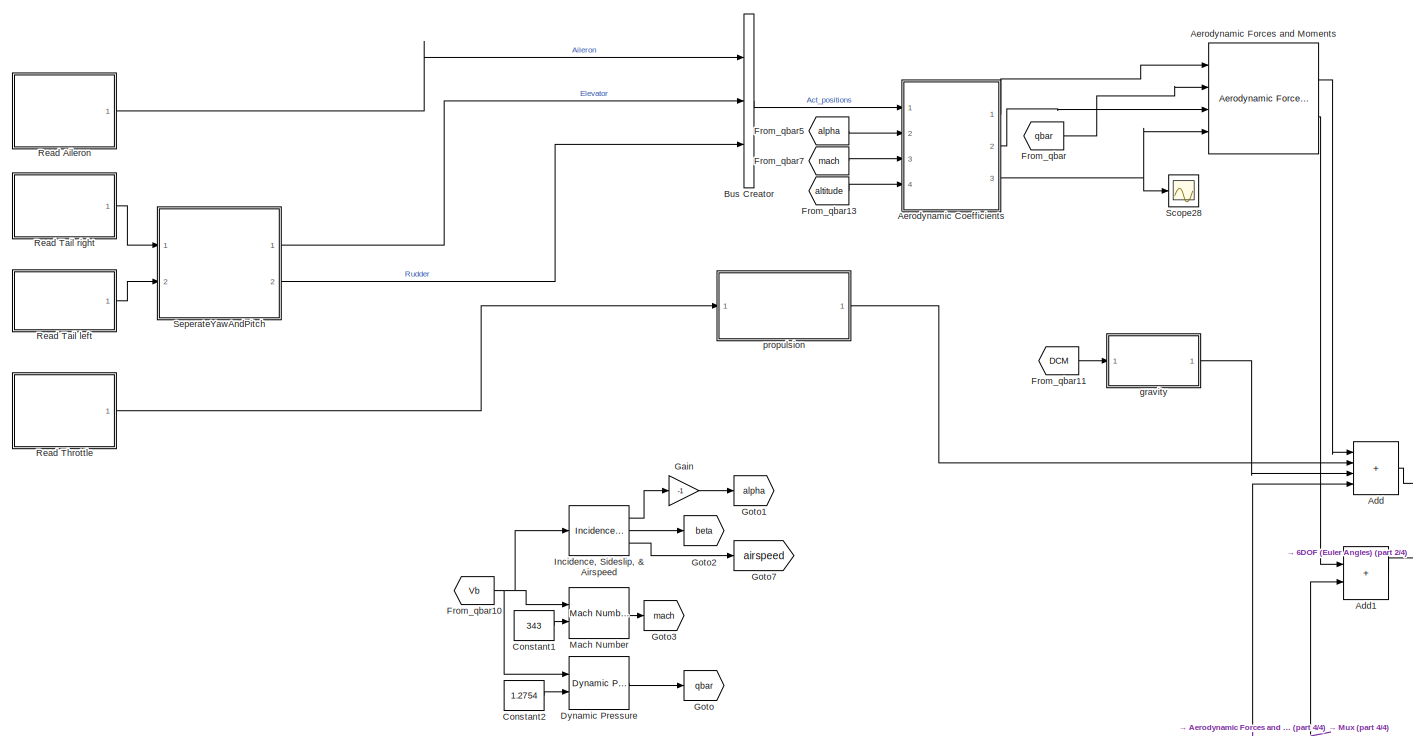
[diagram: root canvas - part 1/4, top left region]
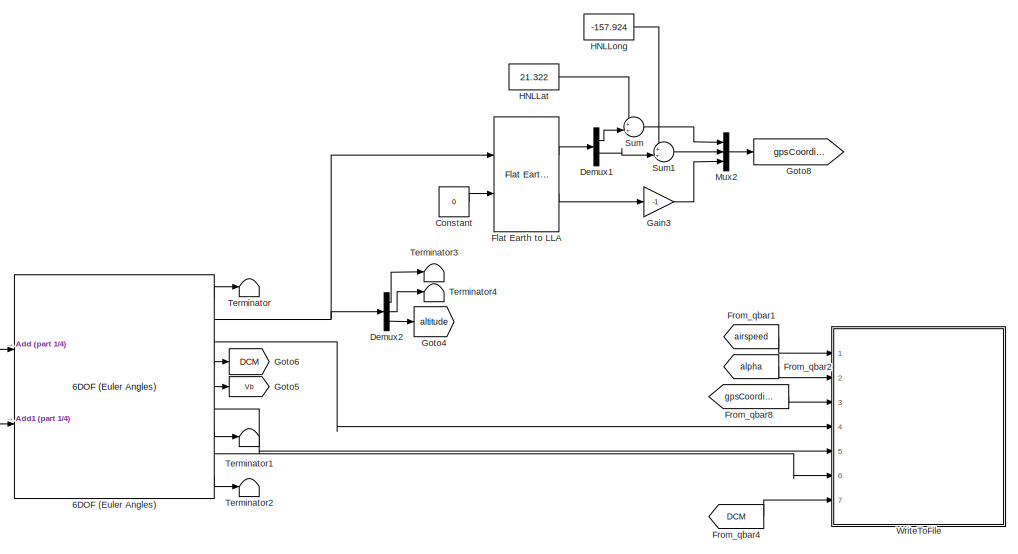
[diagram: root canvas - part 2/4, top right region]
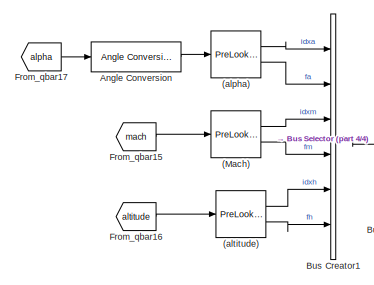
[diagram: root canvas - part 3/4, middle left region]
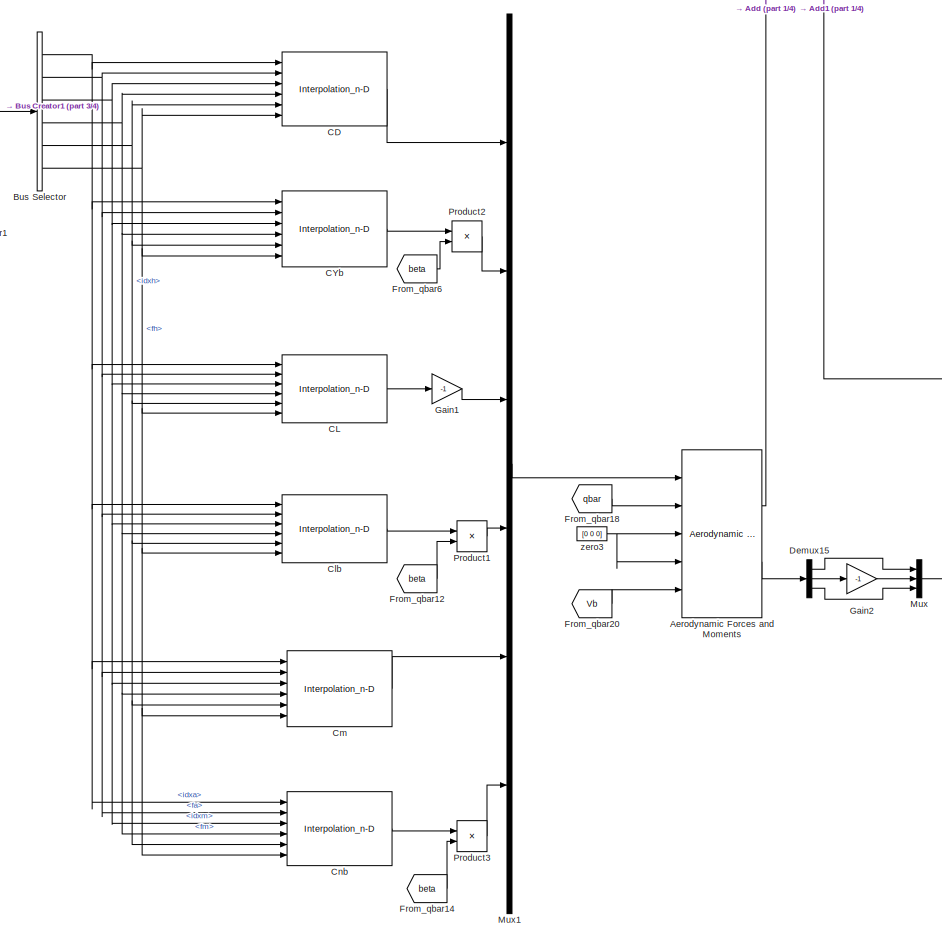
[diagram: root canvas - part 4/4, bottom center region]
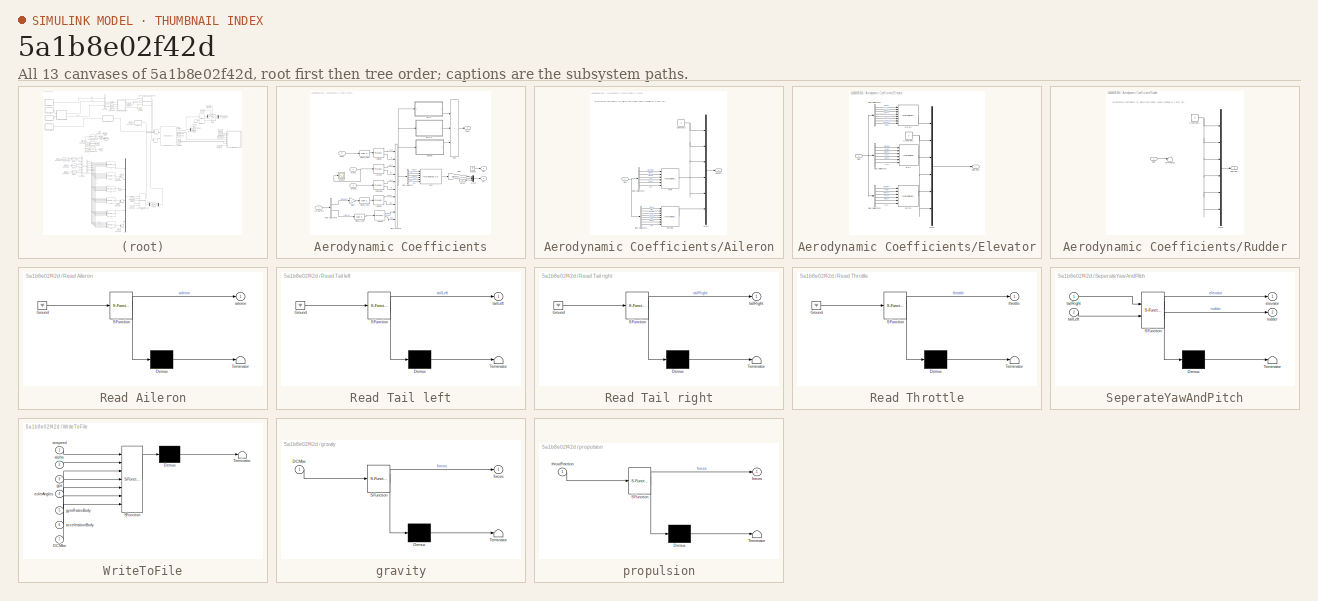
[diagram: thumbnail index - all 13 canvases of the model, root first then tree order]
MODEL slx_5a1b8e02f42d
KIND model
CONFIG AbsTol = auto
CONFIG EnableMultiTasking = off
CONFIG FixedStep = 0.02
CONFIG MaxStep = auto
CONFIG MinStep = auto
CONFIG RelTol = 1e-3
CONFIG SampleTimeConstraint = Unconstrained
CONFIG Solver = FixedStepAuto
CONFIG SolverName = FixedStepAuto
CONFIG StartTime = 0.0
CONFIG StopTime = 10.0
BLOCK [PreLookup] (Mach)
  BeginIndexSearchUsingPreviousIndexResult = on
  BreakpointsData = aero{1}.mach
  DiagnosticForOutOfRangeInput = Warning
  ExtrapMethod = Linear
  FractionDataTypeStr = double
  IndexDataTypeStr = int32
  InputPortMap = u0
  Ports = [1, 2]
BLOCK [PreLookup] (alpha)
  BeginIndexSearchUsingPreviousIndexResult = on
  BreakpointsData = aero{1}.alpha
  DiagnosticForOutOfRangeInput = Warning
  ExtrapMethod = Linear
  FractionDataTypeStr = double
  IndexDataTypeStr = int32
  InputPortMap = u0
  Ports = [1, 2]
BLOCK [PreLookup] (altitude)
  BeginIndexSearchUsingPreviousIndexResult = on
  BreakpointsData = aero{1}.alt
  DiagnosticForOutOfRangeInput = Warning
  ExtrapMethod = Linear
  FractionDataTypeStr = double
  IndexDataTypeStr = int32
  InputPortMap = u0
  Ports = [1, 2]
BLOCK [Reference] 6DOF (Euler Angles)  REF=shared6dof/6DOF (Euler Angles)
  Ports = [2, 9]
  SourceBlock = shared6dof/6DOF (Euler Angles)
  SourceProductBaseCode = AE,PW,MT,VE,VP
  SourceType = 6DOF EoM (Body Axis)
BLOCK [Sum] Add
  IconShape = rectangular
  Inputs = ++++
  Ports = [4, 1]
BLOCK [Sum] Add1
  IconShape = rectangular
  Ports = [2, 1]
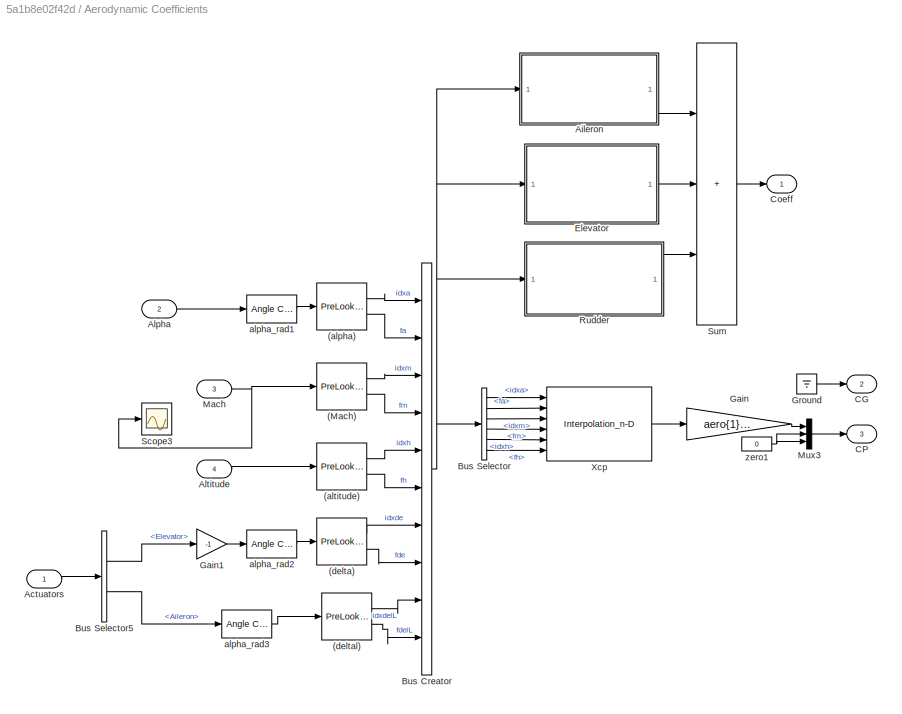
BLOCK [SubSystem] Aerodynamic Coefficients
  NameLocation = top
  Ports = [4, 3]
  RequestExecContextInheritance = off
BLOCK [PreLookup] Aerodynamic Coefficients/(Mach)
  BeginIndexSearchUsingPreviousIndexResult = on
  BreakpointsData = aero{1}.mach
  ExtrapMethod = Linear
  FractionDataTypeStr = double
  IndexDataTypeStr = int32
  InputPortMap = u0
  Ports = [1, 2]
BLOCK [PreLookup] Aerodynamic Coefficients/(alpha)
  BeginIndexSearchUsingPreviousIndexResult = on
  BreakpointsData = aero{1}.alpha
  ExtrapMethod = Linear
  FractionDataTypeStr = double
  IndexDataTypeStr = int32
  InputPortMap = u0
  Ports = [1, 2]
BLOCK [PreLookup] Aerodynamic Coefficients/(altitude)
  BeginIndexSearchUsingPreviousIndexResult = on
  BreakpointsData = aero{1}.alt
  ExtrapMethod = Linear
  FractionDataTypeStr = double
  IndexDataTypeStr = int32
  InputPortMap = u0
  Ports = [1, 2]
BLOCK [PreLookup] Aerodynamic Coefficients/(delta)
  BeginIndexSearchUsingPreviousIndexResult = on
  BreakpointsData = aero{1}.delta
  ExtrapMethod = Linear
  FractionDataTypeStr = double
  IndexDataTypeStr = int32
  InputPortMap = u0
  Ports = [1, 2]
BLOCK [PreLookup] Aerodynamic Coefficients/(deltal)
  BeginIndexSearchUsingPreviousIndexResult = on
  BreakpointsData = aero{2}.deltal
  ExtrapMethod = Linear
  FractionDataTypeStr = double
  IndexDataTypeStr = int32
  InputPortMap = u0
  Ports = [1, 2]
BLOCK [Inport] Aerodynamic Coefficients/Actuators
BLOCK [SubSystem] Aerodynamic Coefficients/Aileron
  Ports = [1, 1]
  RequestExecContextInheritance = off
BLOCK [Inport] Aerodynamic Coefficients/Aileron/Bus
BLOCK [BusSelector] Aerodynamic Coefficients/Aileron/Bus Selector2
  OutputSignals = idxa,fa,idxdelL,fdelL,idxm,fm,idxh,fh
  Ports = [1, 8]
BLOCK [BusSelector] Aerodynamic Coefficients/Aileron/Bus Selector3
  OutputSignals = idxdelL,fdelL,idxm,fm,idxh,fh
  Ports = [1, 6]
BLOCK [Interpolation_n-D] Aerodynamic Coefficients/Aileron/CmYaw 
  InputPortMap = u0,u1,u2,u3,u4,u5,u6,u7
  NumberOfTableDimensions = 4
  Ports = [8, 1]
  RemoveProtectionIndex = on
  Table = aero{2}.cn_asy
BLOCK [Constant] Aerodynamic Coefficients/Aileron/Constant1
  Value = 0
BLOCK [Mux] Aerodynamic Coefficients/Aileron/Mux1
  Inputs = 6
  Ports = [6, 1]
BLOCK [Interpolation_n-D] Aerodynamic Coefficients/Aileron/clroll
  InputPortMap = u0,u1,u2,u3,u4,u5
  NumberOfTableDimensions = 3
  Ports = [6, 1]
  RemoveProtectionIndex = on
  Table = permute(aero{2}.clroll,[1  2  3])
BLOCK [Outport] Aerodynamic Coefficients/Aileron/delCoeff
  VectorParamsAs1DForOutWhenUnconnected = off
BLOCK [Inport] Aerodynamic Coefficients/Alpha
  Port = 2
BLOCK [Inport] Aerodynamic Coefficients/Altitude
  Port = 4
BLOCK [BusCreator] Aerodynamic Coefficients/Bus Creator
  DisplayOption = bar
  InheritFromInputs = on
  Inputs = idxa,fa,idxm,fm,idxh,fh,idxde,fde,idxdelL,fdelL
  Ports = [10, 1]
BLOCK [BusSelector] Aerodynamic Coefficients/Bus Selector
  OutputSignals = idxa,fa,idxm,fm,idxh,fh
  Ports = [1, 6]
BLOCK [BusSelector] Aerodynamic Coefficients/Bus Selector5
  OutputSignals = Elevator,Aileron
  Ports = [1, 2]
BLOCK [Outport] Aerodynamic Coefficients/CG
  InitialOutput = 0
  Port = 2
  PortDimensions = 3
  VectorParamsAs1DForOutWhenUnconnected = off
BLOCK [Outport] Aerodynamic Coefficients/CP
  InitialOutput = 0
  Port = 3
  PortDimensions = 3
  VectorParamsAs1DForOutWhenUnconnected = off
BLOCK [Outport] Aerodynamic Coefficients/Coeff
  InitialOutput = 0
  VectorParamsAs1DForOutWhenUnconnected = off
BLOCK [SubSystem] Aerodynamic Coefficients/Elevator
  Ports = [1, 1]
  RequestExecContextInheritance = off
BLOCK [Inport] Aerodynamic Coefficients/Elevator/Bus
  NameLocation = top
BLOCK [BusSelector] Aerodynamic Coefficients/Elevator/Bus Selector2
  OutputSignals = idxa,fa,idxm,fm,idxh,fh,idxde,fde
  Ports = [1, 8]
BLOCK [BusSelector] Aerodynamic Coefficients/Elevator/Bus Selector3
  OutputSignals = idxde,fde,idxm,fm,idxh,fh
  Ports = [1, 6]
BLOCK [BusSelector] Aerodynamic Coefficients/Elevator/Bus Selector5
  OutputSignals = idxde,fde,idxm,fm,idxh,fh
  Ports = [1, 6]
BLOCK [Constant] Aerodynamic Coefficients/Elevator/Constant1
  Value = 0
BLOCK [Interpolation_n-D] Aerodynamic Coefficients/Elevator/DCDI
  InputPortMap = u0,u1,u2,u3,u4,u5,u6,u7
  NumberOfTableDimensions = 4
  Ports = [8, 1]
  RemoveProtectionIndex = on
  Table = permute(aero{1}.dcdi_sym,[1 3 4 2 ])
BLOCK [Interpolation_n-D] Aerodynamic Coefficients/Elevator/DCL
  InputPortMap = u0,u1,u2,u3,u4,u5
  NumberOfTableDimensions = 3
  Ports = [6, 1]
  RemoveProtectionIndex = on
  Table = permute(aero{1}.dcl_sym,[1  2  3])
BLOCK [Interpolation_n-D] Aerodynamic Coefficients/Elevator/DCm
  InputPortMap = u0,u1,u2,u3,u4,u5
  NumberOfTableDimensions = 3
  Ports = [6, 1]
  RemoveProtectionIndex = on
  Table = permute(aero{1}.dcm_sym,[1  2  3])
BLOCK [Mux] Aerodynamic Coefficients/Elevator/Mux1
  Inputs = 6
  Ports = [6, 1]
BLOCK [Outport] Aerodynamic Coefficients/Elevator/delCoeff
  VectorParamsAs1DForOutWhenUnconnected = off
BLOCK [Gain] Aerodynamic Coefficients/Gain
  Gain = aero{1}.cbar
BLOCK [Gain] Aerodynamic Coefficients/Gain1
  Gain = -1
BLOCK [Ground] Aerodynamic Coefficients/Ground
BLOCK [Inport] Aerodynamic Coefficients/Mach
  Port = 3
BLOCK [Mux] Aerodynamic Coefficients/Mux3
  DisplayOption = bar
  Inputs = 3
  Ports = [3, 1]
BLOCK [SubSystem] Aerodynamic Coefficients/Rudder
  Ports = [1, 1]
  RequestExecContextInheritance = off
BLOCK [Inport] Aerodynamic Coefficients/Rudder/Bus
BLOCK [Constant] Aerodynamic Coefficients/Rudder/Constant1
  Value = 0
BLOCK [Mux] Aerodynamic Coefficients/Rudder/Mux1
  Inputs = 6
  Ports = [6, 1]
BLOCK [Terminator] Aerodynamic Coefficients/Rudder/Terminator
BLOCK [Outport] Aerodynamic Coefficients/Rudder/delCoeff
  VectorParamsAs1DForOutWhenUnconnected = off
BLOCK [Scope] Aerodynamic Coefficients/Scope3
  Floating = off
  NumInputPorts = 1
  Ports = [1]
  ScopeSpecificationString = Simulink.scopes.TimeScopeBlockCfg('CurrentConfiguration', extmgr.ConfigurationSet(extmgr.Configuration('Core','General UI',true),extmgr.Configuration('Core','Source UI',true),extmgr.Configuration('Sources','WiredSimulink',true,'DataLoggingVariableName','ScopeData8'),extmgr.Configuration('Visuals','Time Domain',true,'SerializedDisplays',{struct('MinYLimReal','0.03517','MaxYLimReal','0.26657','YLabe...<+1396ch>
BLOCK [Sum] Aerodynamic Coefficients/Sum
  IconShape = rectangular
  InputSameDT = on
  Inputs = 3
  OutDataTypeStr = Inherit: Same as first input
  Ports = [3, 1]
  SaturateOnIntegerOverflow = on
BLOCK [Interpolation_n-D] Aerodynamic Coefficients/Xcp
  InputPortMap = u0,u1,u2,u3,u4,u5
  NumberOfTableDimensions = 3
  OutDataTypeStr = double
  Ports = [6, 1]
  Table = permute(aero{1}.xcp,[1  2  3])
BLOCK [Reference] Aerodynamic Coefficients/alpha_rad1  REF=aerolibconvert2/Angle Conversion
  NameLocation = top
  Ports = [1, 1]
  SourceBlock = aerolibconvert2/Angle Conversion
  SourceProductBaseCode = AE
  SourceType = Angle Conversion
BLOCK [Reference] Aerodynamic Coefficients/alpha_rad2  REF=aerolibconvert2/Angle Conversion
  NameLocation = top
  Ports = [1, 1]
  SourceBlock = aerolibconvert2/Angle Conversion
  SourceProductBaseCode = AE
  SourceType = Angle Conversion
BLOCK [Reference] Aerodynamic Coefficients/alpha_rad3  REF=aerolibconvert2/Angle Conversion
  NameLocation = top
  Ports = [1, 1]
  SourceBlock = aerolibconvert2/Angle Conversion
  SourceProductBaseCode = AE
  SourceType = Angle Conversion
BLOCK [Constant] Aerodynamic Coefficients/zero1
  Value = 0
BLOCK [Reference] Aerodynamic Forces and Moments  REF=aerolibadyn/Aerodynamic
Forces and Moments 
  Ports = [5, 2]
  SourceBlock = aerolibadyn/Aerodynamic\nForces and Moments
  SourceProductBaseCode = AE
  SourceType = Aerodynamic Forces and Moments
BLOCK [Reference] Aerodynamic Forces and Moments   REF=aerolibadyn/Aerodynamic
Forces and Moments 
  Ports = [4, 2]
  SourceBlock = aerolibadyn/Aerodynamic\nForces and Moments
  SourceProductBaseCode = AE
  SourceType = Aerodynamic Forces and Moments
BLOCK [Reference] Angle Conversion  REF=aerolibconvert2/Angle Conversion
  Ports = [1, 1]
  SourceBlock = aerolibconvert2/Angle Conversion
  SourceProductBaseCode = AE
  SourceType = Angle Conversion
BLOCK [BusCreator] Bus Creator
  DisplayOption = bar
  InheritFromInputs = on
  Inputs = 3
  Ports = [3, 1]
BLOCK [BusCreator] Bus Creator1
  DisplayOption = bar
  InheritFromInputs = on
  Inputs = 6
  Ports = [6, 1]
BLOCK [BusSelector] Bus Selector
  OutputSignals = idxa,fa,idxm,fm,idxh,fh
  Ports = [1, 6]
BLOCK [Interpolation_n-D] CD
  DiagnosticForOutOfRangeInput = Warning
  InputPortMap = u0,u1,u2,u3,u4,u5
  NumberOfTableDimensions = 3
  OutDataTypeStr = double
  Ports = [6, 1]
  Table = permute(aero{1}.cd,[1  2  3])
BLOCK [Interpolation_n-D] CL
  DiagnosticForOutOfRangeInput = Warning
  InputPortMap = u0,u1,u2,u3,u4,u5
  NumberOfTableDimensions = 3
  OutDataTypeStr = double
  Ports = [6, 1]
  Table = permute(aero{1}.cl,[1  2  3])
BLOCK [Interpolation_n-D] CYb
  DiagnosticForOutOfRangeInput = Warning
  InputPortMap = u0,u1,u2,u3,u4,u5
  NumberOfTableDimensions = 3
  OutDataTypeStr = double
  Ports = [6, 1]
  Table = permute(aero{1}.cyb,[1  2  3])
BLOCK [Interpolation_n-D] Clb
  DiagnosticForOutOfRangeInput = Warning
  InputPortMap = u0,u1,u2,u3,u4,u5
  NumberOfTableDimensions = 3
  OutDataTypeStr = double
  Ports = [6, 1]
  Table = permute(aero{1}.clb,[1  2  3])
BLOCK [Interpolation_n-D] Cm
  DiagnosticForOutOfRangeInput = Warning
  InputPortMap = u0,u1,u2,u3,u4,u5
  NumberOfTableDimensions = 3
  OutDataTypeStr = double
  Ports = [6, 1]
  Table = permute(aero{1}.cm,[1  2  3])
BLOCK [Interpolation_n-D] Cnb
  DiagnosticForOutOfRangeInput = Warning
  InputPortMap = u0,u1,u2,u3,u4,u5
  NumberOfTableDimensions = 3
  OutDataTypeStr = double
  Ports = [6, 1]
  Table = permute(aero{1}.cnb,[1  2  3])
BLOCK [Constant] Constant
  Value = 0
BLOCK [Constant] Constant1
  Value = 343
BLOCK [Constant] Constant2
  Value = 1.2754
BLOCK [Demux] Demux1
  Outputs = 2
  Ports = [1, 2]
BLOCK [Demux] Demux15
  Outputs = 3
  Ports = [1, 3]
BLOCK [Demux] Demux2
  Outputs = 3
  Ports = [1, 3]
BLOCK [Reference] Dynamic Pressure  REF=aerolibasang/Dynamic Pressure
  Ports = [2, 1]
  SourceBlock = aerolibasang/Dynamic Pressure
  SourceProductBaseCode = AE
  SourceType = Dynamic Pressure
BLOCK [Reference] Flat Earth to LLA  REF=aerolibtransform2/Flat Earth to LLA
  Ports = [2, 2]
  SourceBlock = aerolibtransform2/Flat Earth to LLA
  SourceProductBaseCode = AE
  SourceType = Flat Earth to LLA
BLOCK [From] From_qbar
  GotoTag = qbar
BLOCK [From] From_qbar1
  GotoTag = airspeed
BLOCK [From] From_qbar10
  GotoTag = Vb
BLOCK [From] From_qbar11
  GotoTag = DCM
BLOCK [From] From_qbar12
  GotoTag = beta
BLOCK [From] From_qbar13
  GotoTag = altitude
BLOCK [From] From_qbar14
  GotoTag = beta
BLOCK [From] From_qbar15
  GotoTag = mach
BLOCK [From] From_qbar16
  GotoTag = altitude
BLOCK [From] From_qbar17
  GotoTag = alpha
BLOCK [From] From_qbar18
  GotoTag = qbar
BLOCK [From] From_qbar2
  GotoTag = alpha
BLOCK [From] From_qbar20
  GotoTag = Vb
BLOCK [From] From_qbar4
  GotoTag = DCM
BLOCK [From] From_qbar5
  GotoTag = alpha
BLOCK [From] From_qbar6
  GotoTag = beta
BLOCK [From] From_qbar7
  GotoTag = mach
BLOCK [From] From_qbar8
  GotoTag = gpsCoordinates
BLOCK [Gain] Gain
  Gain = -1
BLOCK [Gain] Gain1
  Gain = -1
BLOCK [Gain] Gain2
  Gain = -1
BLOCK [Gain] Gain3
  Gain = -1
BLOCK [Goto] Goto
  GotoTag = qbar
BLOCK [Goto] Goto1
  GotoTag = alpha
BLOCK [Goto] Goto2
  GotoTag = beta
BLOCK [Goto] Goto3
  GotoTag = mach
BLOCK [Goto] Goto4
  GotoTag = altitude
BLOCK [Goto] Goto5
  GotoTag = Vb
BLOCK [Goto] Goto6
  GotoTag = DCM
BLOCK [Goto] Goto7
  GotoTag = airspeed
BLOCK [Goto] Goto8
  GotoTag = gpsCoordinates
BLOCK [Constant] HNLLat
  Value = 21.322
BLOCK [Constant] HNLLong
  Value = -157.924
BLOCK [Reference] Incidence, Sideslip, & Airspeed  REF=aerolibasang/Incidence, Sideslip,
& Airspeed
  Ports = [1, 3]
  SourceBlock = aerolibasang/Incidence, Sideslip,\n& Airspeed
  SourceProductBaseCode = AE
  SourceType = Incidence,Sideslip,&Airspeed
BLOCK [Reference] Mach Number  REF=aerolibasang/Mach Number
  Ports = [2, 1]
  SourceBlock = aerolibasang/Mach Number
  SourceProductBaseCode = AE
  SourceType = Mach Number
BLOCK [Mux] Mux
  DisplayOption = bar
  Inputs = 3
  Ports = [3, 1]
BLOCK [Mux] Mux1
  DisplayOption = bar
  Inputs = 6
  Ports = [6, 1]
BLOCK [Mux] Mux2
  DisplayOption = bar
  Inputs = 3
  Ports = [3, 1]
BLOCK [Product] Product1
  Ports = [2, 1]
  RndMeth = Zero
BLOCK [Product] Product2
  Ports = [2, 1]
  RndMeth = Zero
BLOCK [Product] Product3
  Ports = [2, 1]
  RndMeth = Zero
BLOCK [SubSystem] Read Aileron
  ErrorFcn = Stateflow.Translate.translate
  PermitHierarchicalResolution = ExplicitOnly
  Ports = [0, 1]
  RequestExecContextInheritance = off
  SFBlockType = MATLAB Function
  TreatAsAtomicUnit = on
BLOCK [Demux] Read Aileron/ Demux 
  Outputs = 1
  Ports = [1, 1]
BLOCK [Ground] Read Aileron/ Ground 
BLOCK [S-Function] Read Aileron/ SFunction 
  EnableBusSupport = on
  FunctionName = sf_sfun
  PortCounts = [1 2]
  Ports = [1, 2]
  SFcnIsStateOwnerBlock = off
  SFunctionDeploymentMode = off
  Tag = Stateflow S-Function 2
BLOCK [Terminator] Read Aileron/ Terminator 
BLOCK [Outport] Read Aileron/aileron
  VectorParamsAs1DForOutWhenUnconnected = off
BLOCK [SubSystem] Read Tail left
  ErrorFcn = Stateflow.Translate.translate
  PermitHierarchicalResolution = ExplicitOnly
  Ports = [0, 1]
  RequestExecContextInheritance = off
  SFBlockType = MATLAB Function
  TreatAsAtomicUnit = on
BLOCK [Demux] Read Tail left/ Demux 
  Outputs = 1
  Ports = [1, 1]
BLOCK [Ground] Read Tail left/ Ground 
BLOCK [S-Function] Read Tail left/ SFunction 
  EnableBusSupport = on
  FunctionName = sf_sfun
  PortCounts = [1 2]
  Ports = [1, 2]
  SFcnIsStateOwnerBlock = off
  SFunctionDeploymentMode = off
  Tag = Stateflow S-Function 4
BLOCK [Terminator] Read Tail left/ Terminator 
BLOCK [Outport] Read Tail left/tailLeft
  VectorParamsAs1DForOutWhenUnconnected = off
BLOCK [SubSystem] Read Tail right
  ErrorFcn = Stateflow.Translate.translate
  PermitHierarchicalResolution = ExplicitOnly
  Ports = [0, 1]
  RequestExecContextInheritance = off
  SFBlockType = MATLAB Function
  TreatAsAtomicUnit = on
BLOCK [Demux] Read Tail right/ Demux 
  Outputs = 1
  Ports = [1, 1]
BLOCK [Ground] Read Tail right/ Ground 
BLOCK [S-Function] Read Tail right/ SFunction 
  EnableBusSupport = on
  FunctionName = sf_sfun
  PortCounts = [1 2]
  Ports = [1, 2]
  SFcnIsStateOwnerBlock = off
  SFunctionDeploymentMode = off
  Tag = Stateflow S-Function 5
BLOCK [Terminator] Read Tail right/ Terminator 
BLOCK [Outport] Read Tail right/tailRight
  VectorParamsAs1DForOutWhenUnconnected = off
BLOCK [SubSystem] Read Throttle
  ErrorFcn = Stateflow.Translate.translate
  PermitHierarchicalResolution = ExplicitOnly
  Ports = [0, 1]
  RequestExecContextInheritance = off
  SFBlockType = MATLAB Function
  TreatAsAtomicUnit = on
BLOCK [Demux] Read Throttle/ Demux 
  Outputs = 1
  Ports = [1, 1]
BLOCK [Ground] Read Throttle/ Ground 
BLOCK [S-Function] Read Throttle/ SFunction 
  EnableBusSupport = on
  FunctionName = sf_sfun
  PortCounts = [1 2]
  Ports = [1, 2]
  SFcnIsStateOwnerBlock = off
  SFunctionDeploymentMode = off
  Tag = Stateflow S-Function 3
BLOCK [Terminator] Read Throttle/ Terminator 
BLOCK [Outport] Read Throttle/throttle
  VectorParamsAs1DForOutWhenUnconnected = off
BLOCK [Scope] Scope28
  Floating = off
  NumInputPorts = 1
  Ports = [1]
  ScopeSpecificationString = Simulink.scopes.TimeScopeBlockCfg('CurrentConfiguration', extmgr.ConfigurationSet(extmgr.Configuration('Core','General UI',true),extmgr.Configuration('Core','Source UI',true),extmgr.Configuration('Sources','WiredSimulink',true,'DataLoggingVariableName','ScopeData33'),extmgr.Configuration('Visuals','Time Domain',true,'SerializedDisplays',{struct('MinYLimReal','-2.39294','MaxYLimReal','0.80199','YLa...<+1597ch>
BLOCK [SubSystem] SeperateYawAndPitch
  ErrorFcn = Stateflow.Translate.translate
  PermitHierarchicalResolution = ExplicitOnly
  Ports = [2, 2]
  RequestExecContextInheritance = off
  SFBlockType = MATLAB Function
  TreatAsAtomicUnit = on
BLOCK [Demux] SeperateYawAndPitch/ Demux 
  Outputs = 1
  Ports = [1, 1]
BLOCK [S-Function] SeperateYawAndPitch/ SFunction 
  EnableBusSupport = on
  FunctionName = sf_sfun
  PortCounts = [2 3]
  Ports = [2, 3]
  SFcnIsStateOwnerBlock = off
  SFunctionDeploymentMode = off
  Tag = Stateflow S-Function 6
BLOCK [Terminator] SeperateYawAndPitch/ Terminator 
BLOCK [Outport] SeperateYawAndPitch/elevator
BLOCK [Outport] SeperateYawAndPitch/rudder
  Port = 2
BLOCK [Inport] SeperateYawAndPitch/tailLeft
  Port = 2
BLOCK [Inport] SeperateYawAndPitch/tailRight
BLOCK [Sum] Sum
  Inputs = ++|
  Ports = [2, 1]
BLOCK [Sum] Sum1
  Inputs = ++|
  Ports = [2, 1]
BLOCK [Terminator] Terminator
BLOCK [Terminator] Terminator1
BLOCK [Terminator] Terminator2
BLOCK [Terminator] Terminator3
BLOCK [Terminator] Terminator4
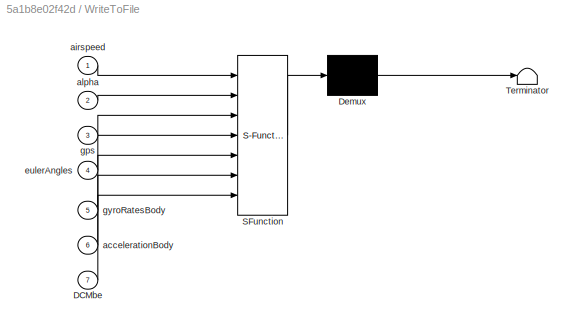
BLOCK [SubSystem] WriteToFile
  ErrorFcn = Stateflow.Translate.translate
  PermitHierarchicalResolution = ExplicitOnly
  Ports = [7]
  RequestExecContextInheritance = off
  SFBlockType = MATLAB Function
  TreatAsAtomicUnit = on
BLOCK [Demux] WriteToFile/ Demux 
  Outputs = 1
  Ports = [1, 1]
BLOCK [S-Function] WriteToFile/ SFunction 
  EnableBusSupport = on
  FunctionName = sf_sfun
  PortCounts = [7 1]
  Ports = [7, 1]
  SFcnIsStateOwnerBlock = off
  SFunctionDeploymentMode = off
  Tag = Stateflow S-Function 1
BLOCK [Terminator] WriteToFile/ Terminator 
BLOCK [Inport] WriteToFile/DCMbe
  Port = 7
BLOCK [Inport] WriteToFile/accelerationBody
  Port = 6
BLOCK [Inport] WriteToFile/airspeed
BLOCK [Inport] WriteToFile/alpha
  Port = 2
BLOCK [Inport] WriteToFile/eulerAngles
  Port = 4
BLOCK [Inport] WriteToFile/gps
  Port = 3
BLOCK [Inport] WriteToFile/gyroRatesBody
  Port = 5
BLOCK [SubSystem] gravity
  ErrorFcn = Stateflow.Translate.translate
  PermitHierarchicalResolution = ExplicitOnly
  Ports = [1, 1]
  RequestExecContextInheritance = off
  SFBlockType = MATLAB Function
  TreatAsAtomicUnit = on
BLOCK [Demux] gravity/ Demux 
  Outputs = 1
  Ports = [1, 1]
BLOCK [S-Function] gravity/ SFunction 
  EnableBusSupport = on
  FunctionName = sf_sfun
  PortCounts = [1 2]
  Ports = [1, 2]
  SFcnIsStateOwnerBlock = off
  SFunctionDeploymentMode = off
  Tag = Stateflow S-Function 7
BLOCK [Terminator] gravity/ Terminator 
BLOCK [Inport] gravity/DCMbe
BLOCK [Outport] gravity/forces
BLOCK [SubSystem] propulsion
  ErrorFcn = Stateflow.Translate.translate
  PermitHierarchicalResolution = ExplicitOnly
  Ports = [1, 1]
  RequestExecContextInheritance = off
  SFBlockType = MATLAB Function
  TreatAsAtomicUnit = on
BLOCK [Demux] propulsion/ Demux 
  Outputs = 1
  Ports = [1, 1]
BLOCK [S-Function] propulsion/ SFunction 
  EnableBusSupport = on
  FunctionName = sf_sfun
  PortCounts = [1 2]
  Ports = [1, 2]
  SFcnIsStateOwnerBlock = off
  SFunctionDeploymentMode = off
  Tag = Stateflow S-Function 8
BLOCK [Terminator] propulsion/ Terminator 
BLOCK [Outport] propulsion/forces
BLOCK [Inport] propulsion/thrustFraction
BLOCK [Constant] zero3
  Value = [0 0 0]
ANNOTATION Aerodynamic Coefficients/Aileron: Aerodynamics coefficients for aileron and rudder will be modeled at a later time when 6DOF model is developed.
ANNOTATION Aerodynamic Coefficients/Rudder: Aerodynamics coefficients for aileron and rudder will be modeled at a later time when 6DOF model is developed.
LINE (Mach):1 -> Bus Creator1:3
LINE (Mach):2 -> Bus Creator1:4
LINE (alpha):1 -> Bus Creator1:1
LINE (alpha):2 -> Bus Creator1:2
LINE (altitude):1 -> Bus Creator1:5
LINE (altitude):2 -> Bus Creator1:6
LINE 6DOF (Euler Angles):1 -> Terminator:1
NET 6DOF (Euler Angles):2 -> Demux2:1, Flat Earth to LLA:1
LINE 6DOF (Euler Angles):3 -> WriteToFile:4
LINE 6DOF (Euler Angles):4 -> Goto6:1
LINE 6DOF (Euler Angles):5 -> Goto5:1
LINE 6DOF (Euler Angles):6 -> WriteToFile:5
LINE 6DOF (Euler Angles):7 -> Terminator1:1
LINE 6DOF (Euler Angles):8 -> WriteToFile:6
LINE 6DOF (Euler Angles):9 -> Terminator2:1
LINE Add1:1 -> 6DOF (Euler Angles):2
LINE Add:1 -> 6DOF (Euler Angles):1
LINE Aerodynamic Coefficients/(Mach):1 -> Aerodynamic Coefficients/Bus Creator:3
LINE Aerodynamic Coefficients/(Mach):2 -> Aerodynamic Coefficients/Bus Creator:4
LINE Aerodynamic Coefficients/(alpha):1 -> Aerodynamic Coefficients/Bus Creator:1
LINE Aerodynamic Coefficients/(alpha):2 -> Aerodynamic Coefficients/Bus Creator:2
LINE Aerodynamic Coefficients/(altitude):1 -> Aerodynamic Coefficients/Bus Creator:5
LINE Aerodynamic Coefficients/(altitude):2 -> Aerodynamic Coefficients/Bus Creator:6
LINE Aerodynamic Coefficients/(delta):1 -> Aerodynamic Coefficients/Bus Creator:7
LINE Aerodynamic Coefficients/(delta):2 -> Aerodynamic Coefficients/Bus Creator:8
LINE Aerodynamic Coefficients/(deltal):1 -> Aerodynamic Coefficients/Bus Creator:9
LINE Aerodynamic Coefficients/(deltal):2 -> Aerodynamic Coefficients/Bus Creator:10
LINE Aerodynamic Coefficients/Actuators:1 -> Aerodynamic Coefficients/Bus Selector5:1
LINE Aerodynamic Coefficients/Aileron/Bus Selector2:1 -> Aerodynamic Coefficients/Aileron/CmYaw :1
LINE Aerodynamic Coefficients/Aileron/Bus Selector2:2 -> Aerodynamic Coefficients/Aileron/CmYaw :2
LINE Aerodynamic Coefficients/Aileron/Bus Selector2:3 -> Aerodynamic Coefficients/Aileron/CmYaw :3
LINE Aerodynamic Coefficients/Aileron/Bus Selector2:4 -> Aerodynamic Coefficients/Aileron/CmYaw :4
LINE Aerodynamic Coefficients/Aileron/Bus Selector2:5 -> Aerodynamic Coefficients/Aileron/CmYaw :5
LINE Aerodynamic Coefficients/Aileron/Bus Selector2:6 -> Aerodynamic Coefficients/Aileron/CmYaw :6
LINE Aerodynamic Coefficients/Aileron/Bus Selector2:7 -> Aerodynamic Coefficients/Aileron/CmYaw :7
LINE Aerodynamic Coefficients/Aileron/Bus Selector2:8 -> Aerodynamic Coefficients/Aileron/CmYaw :8
LINE Aerodynamic Coefficients/Aileron/Bus Selector3:1 -> Aerodynamic Coefficients/Aileron/clroll:1
LINE Aerodynamic Coefficients/Aileron/Bus Selector3:2 -> Aerodynamic Coefficients/Aileron/clroll:2
LINE Aerodynamic Coefficients/Aileron/Bus Selector3:3 -> Aerodynamic Coefficients/Aileron/clroll:3
LINE Aerodynamic Coefficients/Aileron/Bus Selector3:4 -> Aerodynamic Coefficients/Aileron/clroll:4
LINE Aerodynamic Coefficients/Aileron/Bus Selector3:5 -> Aerodynamic Coefficients/Aileron/clroll:5
LINE Aerodynamic Coefficients/Aileron/Bus Selector3:6 -> Aerodynamic Coefficients/Aileron/clroll:6
NET Aerodynamic Coefficients/Aileron/Bus:1 -> Aerodynamic Coefficients/Aileron/Bus Selector2:1, Aerodynamic Coefficients/Aileron/Bus Selector3:1
LINE Aerodynamic Coefficients/Aileron/CmYaw :1 -> Aerodynamic Coefficients/Aileron/Mux1:6
NET Aerodynamic Coefficients/Aileron/Constant1:1 -> Aerodynamic Coefficients/Aileron/Mux1:1, Aerodynamic Coefficients/Aileron/Mux1:2, Aerodynamic Coefficients/Aileron/Mux1:3, Aerodynamic Coefficients/Aileron/Mux1:5
LINE Aerodynamic Coefficients/Aileron/Mux1:1 -> Aerodynamic Coefficients/Aileron/delCoeff:1
LINE Aerodynamic Coefficients/Aileron/clroll:1 -> Aerodynamic Coefficients/Aileron/Mux1:4
LINE Aerodynamic Coefficients/Aileron:1 -> Aerodynamic Coefficients/Sum:1
LINE Aerodynamic Coefficients/Alpha:1 -> Aerodynamic Coefficients/alpha_rad1:1
LINE Aerodynamic Coefficients/Altitude:1 -> Aerodynamic Coefficients/(altitude):1
NET Aerodynamic Coefficients/Bus Creator:1 -> Aerodynamic Coefficients/Aileron:1, Aerodynamic Coefficients/Bus Selector:1, Aerodynamic Coefficients/Elevator:1, Aerodynamic Coefficients/Rudder:1
LINE Aerodynamic Coefficients/Bus Selector5:1 -> Aerodynamic Coefficients/Gain1:1
LINE Aerodynamic Coefficients/Bus Selector5:2 -> Aerodynamic Coefficients/alpha_rad3:1
LINE Aerodynamic Coefficients/Bus Selector:1 -> Aerodynamic Coefficients/Xcp:1
LINE Aerodynamic Coefficients/Bus Selector:2 -> Aerodynamic Coefficients/Xcp:2
LINE Aerodynamic Coefficients/Bus Selector:3 -> Aerodynamic Coefficients/Xcp:3
LINE Aerodynamic Coefficients/Bus Selector:4 -> Aerodynamic Coefficients/Xcp:4
LINE Aerodynamic Coefficients/Bus Selector:5 -> Aerodynamic Coefficients/Xcp:5
LINE Aerodynamic Coefficients/Bus Selector:6 -> Aerodynamic Coefficients/Xcp:6
LINE Aerodynamic Coefficients/Elevator/Bus Selector2:1 -> Aerodynamic Coefficients/Elevator/DCDI:1
LINE Aerodynamic Coefficients/Elevator/Bus Selector2:2 -> Aerodynamic Coefficients/Elevator/DCDI:2
LINE Aerodynamic Coefficients/Elevator/Bus Selector2:3 -> Aerodynamic Coefficients/Elevator/DCDI:3
LINE Aerodynamic Coefficients/Elevator/Bus Selector2:4 -> Aerodynamic Coefficients/Elevator/DCDI:4
LINE Aerodynamic Coefficients/Elevator/Bus Selector2:5 -> Aerodynamic Coefficients/Elevator/DCDI:5
LINE Aerodynamic Coefficients/Elevator/Bus Selector2:6 -> Aerodynamic Coefficients/Elevator/DCDI:6
LINE Aerodynamic Coefficients/Elevator/Bus Selector2:7 -> Aerodynamic Coefficients/Elevator/DCDI:7
LINE Aerodynamic Coefficients/Elevator/Bus Selector2:8 -> Aerodynamic Coefficients/Elevator/DCDI:8
LINE Aerodynamic Coefficients/Elevator/Bus Selector3:1 -> Aerodynamic Coefficients/Elevator/DCL:1
LINE Aerodynamic Coefficients/Elevator/Bus Selector3:2 -> Aerodynamic Coefficients/Elevator/DCL:2
LINE Aerodynamic Coefficients/Elevator/Bus Selector3:3 -> Aerodynamic Coefficients/Elevator/DCL:3
LINE Aerodynamic Coefficients/Elevator/Bus Selector3:4 -> Aerodynamic Coefficients/Elevator/DCL:4
LINE Aerodynamic Coefficients/Elevator/Bus Selector3:5 -> Aerodynamic Coefficients/Elevator/DCL:5
LINE Aerodynamic Coefficients/Elevator/Bus Selector3:6 -> Aerodynamic Coefficients/Elevator/DCL:6
LINE Aerodynamic Coefficients/Elevator/Bus Selector5:1 -> Aerodynamic Coefficients/Elevator/DCm:1
LINE Aerodynamic Coefficients/Elevator/Bus Selector5:2 -> Aerodynamic Coefficients/Elevator/DCm:2
LINE Aerodynamic Coefficients/Elevator/Bus Selector5:3 -> Aerodynamic Coefficients/Elevator/DCm:3
LINE Aerodynamic Coefficients/Elevator/Bus Selector5:4 -> Aerodynamic Coefficients/Elevator/DCm:4
LINE Aerodynamic Coefficients/Elevator/Bus Selector5:5 -> Aerodynamic Coefficients/Elevator/DCm:5
LINE Aerodynamic Coefficients/Elevator/Bus Selector5:6 -> Aerodynamic Coefficients/Elevator/DCm:6
NET Aerodynamic Coefficients/Elevator/Bus:1 -> Aerodynamic Coefficients/Elevator/Bus Selector2:1, Aerodynamic Coefficients/Elevator/Bus Selector3:1, Aerodynamic Coefficients/Elevator/Bus Selector5:1
NET Aerodynamic Coefficients/Elevator/Constant1:1 -> Aerodynamic Coefficients/Elevator/Mux1:2, Aerodynamic Coefficients/Elevator/Mux1:4, Aerodynamic Coefficients/Elevator/Mux1:6
LINE Aerodynamic Coefficients/Elevator/DCDI:1 -> Aerodynamic Coefficients/Elevator/Mux1:1
LINE Aerodynamic Coefficients/Elevator/DCL:1 -> Aerodynamic Coefficients/Elevator/Mux1:3
LINE Aerodynamic Coefficients/Elevator/DCm:1 -> Aerodynamic Coefficients/Elevator/Mux1:5
LINE Aerodynamic Coefficients/Elevator/Mux1:1 -> Aerodynamic Coefficients/Elevator/delCoeff:1
LINE Aerodynamic Coefficients/Elevator:1 -> Aerodynamic Coefficients/Sum:2
LINE Aerodynamic Coefficients/Gain1:1 -> Aerodynamic Coefficients/alpha_rad2:1
LINE Aerodynamic Coefficients/Gain:1 -> Aerodynamic Coefficients/Mux3:1
LINE Aerodynamic Coefficients/Ground:1 -> Aerodynamic Coefficients/CG:1
NET Aerodynamic Coefficients/Mach:1 -> Aerodynamic Coefficients/(Mach):1, Aerodynamic Coefficients/Scope3:1
LINE Aerodynamic Coefficients/Mux3:1 -> Aerodynamic Coefficients/CP:1
LINE Aerodynamic Coefficients/Rudder/Bus:1 -> Aerodynamic Coefficients/Rudder/Terminator:1
NET Aerodynamic Coefficients/Rudder/Constant1:1 -> Aerodynamic Coefficients/Rudder/Mux1:1, Aerodynamic Coefficients/Rudder/Mux1:2, Aerodynamic Coefficients/Rudder/Mux1:3, Aerodynamic Coefficients/Rudder/Mux1:4, Aerodynamic Coefficients/Rudder/Mux1:5, Aerodynamic Coefficients/Rudder/Mux1:6
LINE Aerodynamic Coefficients/Rudder/Mux1:1 -> Aerodynamic Coefficients/Rudder/delCoeff:1
LINE Aerodynamic Coefficients/Rudder:1 -> Aerodynamic Coefficients/Sum:3
LINE Aerodynamic Coefficients/Sum:1 -> Aerodynamic Coefficients/Coeff:1
LINE Aerodynamic Coefficients/Xcp:1 -> Aerodynamic Coefficients/Gain:1
LINE Aerodynamic Coefficients/alpha_rad1:1 -> Aerodynamic Coefficients/(alpha):1
LINE Aerodynamic Coefficients/alpha_rad2:1 -> Aerodynamic Coefficients/(delta):1
LINE Aerodynamic Coefficients/alpha_rad3:1 -> Aerodynamic Coefficients/(deltal):1
NET Aerodynamic Coefficients/zero1:1 -> Aerodynamic Coefficients/Mux3:2, Aerodynamic Coefficients/Mux3:3
LINE Aerodynamic Coefficients:1 -> Aerodynamic Forces and Moments :1
LINE Aerodynamic Coefficients:2 -> Aerodynamic Forces and Moments :3
NET Aerodynamic Coefficients:3 -> Aerodynamic Forces and Moments :4, Scope28:1
LINE Aerodynamic Forces and Moments :1 -> Add:1
LINE Aerodynamic Forces and Moments :2 -> Add1:1
LINE Aerodynamic Forces and Moments:1 -> Add:4
LINE Aerodynamic Forces and Moments:2 -> Demux15:1
LINE Angle Conversion:1 -> (alpha):1
LINE Bus Creator1:1 -> Bus Selector:1
LINE Bus Creator:1 -> Aerodynamic Coefficients:1
NET Bus Selector:1 -> CD:1, CL:1, CYb:1, Clb:1, Cm:1, Cnb:1
NET Bus Selector:2 -> CD:2, CL:2, CYb:2, Clb:2, Cm:2, Cnb:2
NET Bus Selector:3 -> CD:3, CL:3, CYb:3, Clb:3, Cm:3, Cnb:3
NET Bus Selector:4 -> CD:4, CL:4, CYb:4, Clb:4, Cm:4, Cnb:4
NET Bus Selector:5 -> CD:5, CL:5, CYb:5, Clb:5, Cm:5, Cnb:5
NET Bus Selector:6 -> CD:6, CL:6, CYb:6, Clb:6, Cm:6, Cnb:6
LINE CD:1 -> Mux1:1
LINE CL:1 -> Gain1:1
LINE CYb:1 -> Product2:1
LINE Clb:1 -> Product1:1
LINE Cm:1 -> Mux1:5
LINE Cnb:1 -> Product3:1
LINE Constant1:1 -> Mach Number:2
LINE Constant2:1 -> Dynamic Pressure:2
LINE Constant:1 -> Flat Earth to LLA:2
LINE Demux15:1 -> Mux:1
LINE Demux15:2 -> Gain2:1
LINE Demux15:3 -> Mux:3
LINE Demux1:1 -> Sum:2
LINE Demux1:2 -> Sum1:2
LINE Demux2:1 -> Terminator3:1
LINE Demux2:2 -> Terminator4:1
LINE Demux2:3 -> Goto4:1
LINE Dynamic Pressure:1 -> Goto:1
LINE Flat Earth to LLA:1 -> Demux1:1
LINE Flat Earth to LLA:2 -> Gain3:1
NET From_qbar10:1 -> Dynamic Pressure:1, Incidence, Sideslip, & Airspeed:1, Mach Number:1
LINE From_qbar11:1 -> gravity:1
LINE From_qbar12:1 -> Product1:2
LINE From_qbar13:1 -> Aerodynamic Coefficients:4
LINE From_qbar14:1 -> Product3:2
LINE From_qbar15:1 -> (Mach):1
LINE From_qbar16:1 -> (altitude):1
LINE From_qbar17:1 -> Angle Conversion:1
LINE From_qbar18:1 -> Aerodynamic Forces and Moments:2
LINE From_qbar1:1 -> WriteToFile:1
LINE From_qbar20:1 -> Aerodynamic Forces and Moments:5
LINE From_qbar2:1 -> WriteToFile:2
LINE From_qbar4:1 -> WriteToFile:7
LINE From_qbar5:1 -> Aerodynamic Coefficients:2
LINE From_qbar6:1 -> Product2:2
LINE From_qbar7:1 -> Aerodynamic Coefficients:3
LINE From_qbar8:1 -> WriteToFile:3
LINE From_qbar:1 -> Aerodynamic Forces and Moments :2
LINE Gain1:1 -> Mux1:3
LINE Gain2:1 -> Mux:2
LINE Gain3:1 -> Mux2:3
LINE Gain:1 -> Goto1:1
LINE HNLLat:1 -> Sum:1
LINE HNLLong:1 -> Sum1:1
LINE Incidence, Sideslip, & Airspeed:1 -> Gain:1
LINE Incidence, Sideslip, & Airspeed:2 -> Goto2:1
LINE Incidence, Sideslip, & Airspeed:3 -> Goto7:1
LINE Mach Number:1 -> Goto3:1
LINE Mux1:1 -> Aerodynamic Forces and Moments:1
LINE Mux2:1 -> Goto8:1
LINE Mux:1 -> Add1:2
LINE Product1:1 -> Mux1:4
LINE Product2:1 -> Mux1:2
LINE Product3:1 -> Mux1:6
LINE Read Aileron:1 -> Bus Creator:1
LINE Read Tail left:1 -> SeperateYawAndPitch:2
LINE Read Tail right:1 -> SeperateYawAndPitch:1
LINE Read Throttle:1 -> propulsion:1
LINE SeperateYawAndPitch:1 -> Bus Creator:2
LINE SeperateYawAndPitch:2 -> Bus Creator:3
LINE Sum1:1 -> Mux2:2
LINE Sum:1 -> Mux2:1
LINE gravity:1 -> Add:3
LINE propulsion:1 -> Add:2
NET zero3:1 -> Aerodynamic Forces and Moments:3, Aerodynamic Forces and Moments:4
note: NET lines group one-source signal fan-out (src -> all destinations, sorted); 1:1 wires keep LINE
CHART WriteToFile states=1 transitions=1
  STATE_LABEL 'eML_blk_kernel()'
  STATE_LABEL "SCRIPT:\n%#codegen\nfunction fcn(airspeed, alpha, gps, eulerAngles, gyroRatesBody, accelerationBody, DCMbe)\n\ngravityInertial = [0;0;-9.8];\ngravityBody = DCMbe * gravityInertial;\n\nairSpeedFile = fopen( 'SensorOutputs/airspeed.txt', 'a' );\n\naoaFile = fopen( 'SensorOutputs/angleOfAttack.txt', 'a' );\n\nlatFile = fopen( 'SensorOutputs/latitude.txt', 'a' );\nlongFile = fopen( 'SensorOutputs/longitude.txt', ...<+1177ch>"
CHART Read Aileron states=1 transitions=1
  STATE_LABEL 'eML_blk_kernel()'
  STATE_LABEL "SCRIPT:\n%#codegen\nfunction aileron = fcn()\n\ns = readfile('ActuatorCommands/aileron.txt');\n\nlatestData = lastStr2double(s);\n\nmaxAileronDeflect = 0.2618; % radians\n\naileron = (latestData * maxAileronDeflect) / 100.0;\n"
CHART Read Throttle states=1 transitions=1
  STATE_LABEL 'eML_blk_kernel()'
  STATE_LABEL "SCRIPT:\n%#codegen\nfunction throttle = fcn()\n\ns = readfile('ActuatorCommands/throttle.txt');\nlatestData = lastStr2double(s);\n\nthrottle = (latestData / 100.0);\n"
CHART Read Tail left states=1 transitions=1
  STATE_LABEL 'eML_blk_kernel()'
  STATE_LABEL "SCRIPT:\n%#codegen\nfunction tailLeft = fcn()\n\ns = readfile('ActuatorCommands/tailLeft.txt');\nlatestData = lastStr2double(s);\n\ntailLeft = latestData;\n"
CHART Read Tail right states=1 transitions=1
  STATE_LABEL 'eML_blk_kernel()'
  STATE_LABEL "SCRIPT:\n%#codegen\nfunction tailRight = fcn()\n\ns = readfile('ActuatorCommands/tailRight.txt');\nlatestData = lastStr2double(s);\n\ntailRight = latestData;\n"
CHART SeperateYawAndPitch states=1 transitions=1
  STATE_LABEL 'eML_blk_kernel()'
  STATE_LABEL 'SCRIPT:\n%#codegen\nfunction [elevator, rudder]=fcn(tailRight, tailLeft)\n\ntailAngle = pi/4;\n\nelevator = ((tailRight - tailLeft) / (2 * cos(tailAngle)));\n\nrudder = ((tailRight + tailLeft) / (2 * sin(tailAngle)));\n\nmaxElevatorDeflect = 0.436; % radians\n\nelevator = (elevator * maxElevatorDeflect) / 100.0;'
CHART gravity states=1 transitions=1
  STATE_LABEL 'eML_blk_kernel()'
  STATE_LABEL 'SCRIPT:\n%#codegen\nfunction forces  = fcn(DCMbe)\n\nmass = 800;\ngravityInertial = [0;0;-9.8*mass];\ngravityBody = DCMbe * gravityInertial;\n\nforces = gravityBody;\n'
CHART propulsion states=1 transitions=1
  STATE_LABEL 'eML_blk_kernel()'
  STATE_LABEL 'SCRIPT:\n%#codegen\nfunction forces  = fcn(thrustFraction)\n\nmaxThrust = 2200; %Newtons\nforces = [maxThrust*thrustFraction;0;0];\n\n'
CHART  states=0 transitions=0
CHART  states=0 transitions=0
CHART  states=0 transitions=0
CHART  states=0 transitions=0
CHART  states=0 transitions=0
CHART  states=0 transitions=0
CHART  states=0 transitions=0
CHART  states=0 transitions=0
